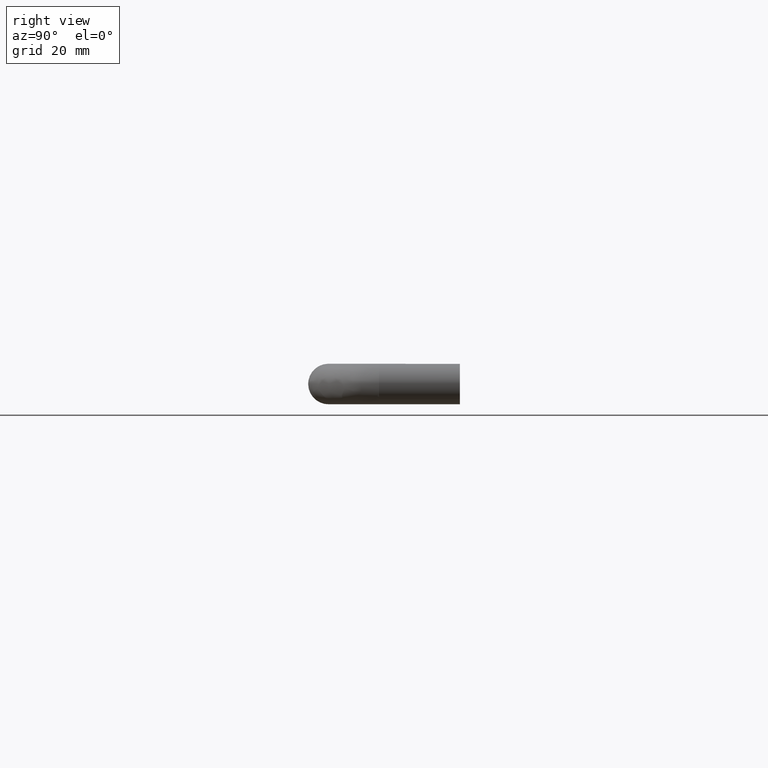
[diagram: clean part render]
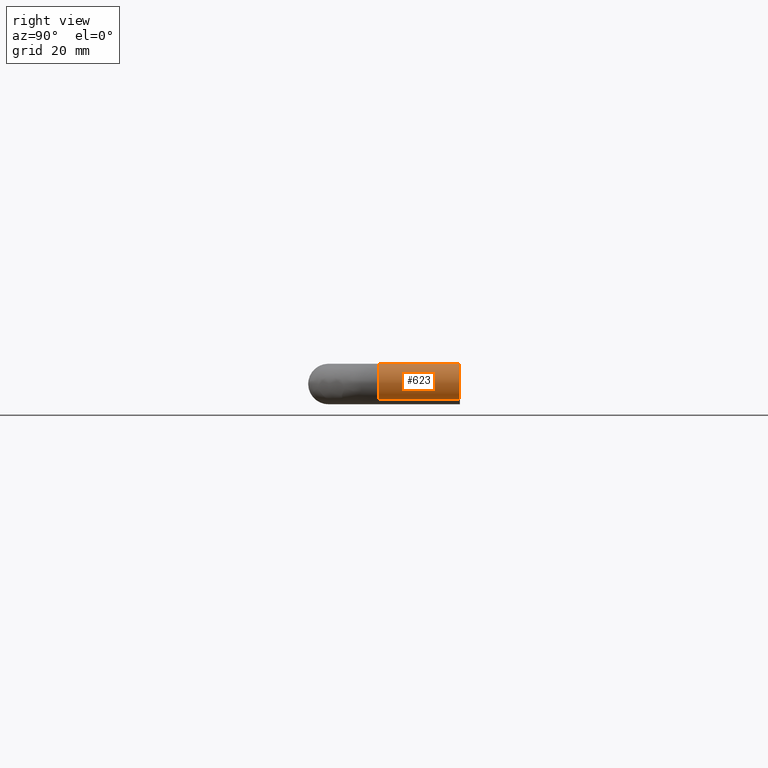
[diagram: same view with one face highlighted and labeled with its STEP entity id]
A machine part, right view. The second image highlights one B-rep face of the part: STEP entity #623.
In plain terms, the highlighted face is a freeform B-spline surface patch.
Its self-contained STEP definition (entity closure, byte-faithful):
#426=CARTESIAN_POINT('',(203.953817432960110,-24.0,-4.513017583260728));
#427=VERTEX_POINT('',#426);
#460=CARTESIAN_POINT('',(195.794544533120190,-24.0,4.279502811786761));
#461=VERTEX_POINT('',#460);
#475=CARTESIAN_POINT('',(195.794544531687510,2.418898E-014,4.279502810378846));
#476=VERTEX_POINT('',#475);
#477=CARTESIAN_POINT('',(195.794544533120190,-24.0,4.279502811786761));
#478=CARTESIAN_POINT('',(195.794544531687510,2.418898E-014,4.279502810378846));
#479=QUASI_UNIFORM_CURVE('',1,(#477,#478),.UNSPECIFIED.,.F.,.U.);
#480=EDGE_CURVE('',#461,#476,#479,.T.);
#497=CARTESIAN_POINT('',(203.953812656972390,2.378472E-014,-4.513021767455207));
#498=VERTEX_POINT('',#497);
#514=CARTESIAN_POINT('',(203.953817432960110,-24.0,-4.513017583260728));
#515=CARTESIAN_POINT('',(203.953812656972390,2.378472E-014,-4.513021767455207));
#516=QUASI_UNIFORM_CURVE('',1,(#514,#515),.UNSPECIFIED.,.F.,.U.);
#517=EDGE_CURVE('',#427,#498,#516,.T.);
#522=CARTESIAN_POINT('',(195.794544414200910,-24.600000000748739,4.279502694925088));
#523=CARTESIAN_POINT('',(200.074047109126040,-24.600000000748739,8.484958280724193));
#524=CARTESIAN_POINT('',(204.279502694925100,-24.600000000748739,4.205455585799104));
#525=CARTESIAN_POINT('',(208.484958280724130,-24.600000000748739,-0.074047109125984));
#526=CARTESIAN_POINT('',(204.205455585799090,-24.600000000748739,-4.279502694925088));
#527=CARTESIAN_POINT('',(204.082978057269060,-24.600000000748739,-4.399861027004738));
#528=CARTESIAN_POINT('',(203.953817432959620,-24.600000000748739,-4.513017583261183));
#529=CARTESIAN_POINT('',(195.794544414200910,0.615000000018747,4.279502694925088));
#530=CARTESIAN_POINT('',(200.074047109126040,0.615000000018747,8.484958280724193));
#531=CARTESIAN_POINT('',(204.279502694925100,0.615000000018746,4.205455585799104));
#532=CARTESIAN_POINT('',(208.484958280724130,0.615000000018746,-0.074047109125984));
#533=CARTESIAN_POINT('',(204.205455585799090,0.615000000018746,-4.279502694925088));
#534=CARTESIAN_POINT('',(204.082978057269060,0.615000000018746,-4.399861027004738));
#535=CARTESIAN_POINT('',(203.953817432959620,0.615000000018746,-4.513017583261183));
#543=(BOUNDED_SURFACE()B_SPLINE_SURFACE(2,1,((#522,#529),(#523,#530),(#524,#531),(#525,#532),(#526,#533),(#527,#534),(#528,#535)),.UNSPECIFIED.,.F.,.F.,.U.)B_SPLINE_SURFACE_WITH_KNOTS((3,2,2,3),(2,2),(0.0,9.941125496954337,19.882250993908670,20.279896013786850),(0.0,25.215000000767489),.UNSPECIFIED.)GEOMETRIC_REPRESENTATION_ITEM()RATIONAL_B_SPLINE_SURFACE(((1.0,1.0),(0.707106781186548,0.707106781186548),(1.0,1.0),(0.707106781186548,0.707106781186548),(1.0,1.0),(0.988284271247462,0.988284271247462),(0.977505800795127,0.977505800795127)))REPRESENTATION_ITEM('')SURFACE());
#544=CARTESIAN_POINT('',(206.0,-24.0,0.0));
#545=VERTEX_POINT('',#544);
#546=CARTESIAN_POINT('',(206.0,-24.0,0.0));
#547=CARTESIAN_POINT('',(205.999999999999970,-24.000000000000004,-2.720373935119238));
#548=CARTESIAN_POINT('',(203.953817432960140,-23.999999999999996,-4.513017583260728));
#556=(BOUNDED_CURVE()B_SPLINE_CURVE(2,(#546,#547,#548),.UNSPECIFIED.,.F.,.U.)B_SPLINE_CURVE_WITH_KNOTS((3,3),(0.0,0.134954720076236),.UNSPECIFIED.)CURVE()GEOMETRIC_REPRESENTATION_ITEM()RATIONAL_B_SPLINE_CURVE((1.0,0.841890710571211,0.854482180312941))REPRESENTATION_ITEM(''));
#557=EDGE_CURVE('',#545,#427,#556,.T.);
#558=ORIENTED_EDGE('',*,*,#557,.T.);
#559=ORIENTED_EDGE('',*,*,#517,.T.);
#560=CARTESIAN_POINT('',(206.0,2.428613E-014,0.0));
#561=VERTEX_POINT('',#560);
#562=CARTESIAN_POINT('',(206.0,2.428613E-014,0.0));
#563=CARTESIAN_POINT('',(205.999999999999970,2.428613E-014,-2.720377762562457));
#564=CARTESIAN_POINT('',(203.953812656972450,2.378472E-014,-4.513021767455208));
#572=(BOUNDED_CURVE()B_SPLINE_CURVE(2,(#562,#563,#564),.UNSPECIFIED.,.F.,.U.)B_SPLINE_CURVE_WITH_KNOTS((3,3),(0.0,0.134954879930363),.UNSPECIFIED.)CURVE()GEOMETRIC_REPRESENTATION_ITEM()RATIONAL_B_SPLINE_CURVE((1.0,0.841890523290453,0.854482210142421))REPRESENTATION_ITEM(''));
#573=EDGE_CURVE('',#561,#498,#572,.T.);
#574=ORIENTED_EDGE('',*,*,#573,.F.);
#575=CARTESIAN_POINT('',(195.794544531687540,2.418898E-014,4.279502810378846));
#576=CARTESIAN_POINT('',(197.545335383723200,2.428613E-014,6.0));
#577=CARTESIAN_POINT('',(200.0,2.428613E-014,6.0));
#578=CARTESIAN_POINT('',(206.0,2.428613E-014,6.0));
#579=CARTESIAN_POINT('',(206.0,2.428613E-014,0.0));
#587=(BOUNDED_CURVE()B_SPLINE_CURVE(2,(#575,#576,#577,#578,#579),.UNSPECIFIED.,.F.,.U.)B_SPLINE_CURVE_WITH_KNOTS((3,2,3),(0.626316765876024,0.750000000000000,1.0),.UNSPECIFIED.)CURVE()GEOMETRIC_REPRESENTATION_ITEM()RATIONAL_B_SPLINE_CURVE((0.853569641455998,0.855096077776684,1.0,0.707106781186548,1.0))REPRESENTATION_ITEM(''));
#588=EDGE_CURVE('',#476,#561,#587,.T.);
#589=ORIENTED_EDGE('',*,*,#588,.F.);
#590=ORIENTED_EDGE('',*,*,#480,.F.);
#591=CARTESIAN_POINT('',(200.418399512634010,-24.000000000730470,5.985394042820203));
#592=VERTEX_POINT('',#591);
#593=CARTESIAN_POINT('',(195.794544533120160,-24.000000000000004,4.279502811786761));
#594=CARTESIAN_POINT('',(197.545335386068050,-24.000000000000007,6.000000000000001));
#595=CARTESIAN_POINT('',(200.0,-24.0,6.0));
#596=CARTESIAN_POINT('',(200.209454698441310,-24.000000000000004,6.000000000000001));
#597=CARTESIAN_POINT('',(200.418399512634040,-24.000000000730477,5.985394042820203));
#605=(BOUNDED_CURVE()B_SPLINE_CURVE(2,(#593,#594,#595,#596,#597),.UNSPECIFIED.,.F.,.U.)B_SPLINE_CURVE_WITH_KNOTS((3,2,3),(0.626316765977056,0.750000000000000,0.762166313647692),.UNSPECIFIED.)CURVE()GEOMETRIC_REPRESENTATION_ITEM()RATIONAL_B_SPLINE_CURVE((0.853569641458491,0.855096077895049,1.0,0.985746276938534,0.972879876000374))REPRESENTATION_ITEM(''));
#606=EDGE_CURVE('',#461,#592,#605,.T.);
#607=ORIENTED_EDGE('',*,*,#606,.T.);
#608=CARTESIAN_POINT('',(200.418399512634010,-24.000000000730470,5.985394042820203));
#609=CARTESIAN_POINT('',(206.000000000000030,-24.000000000000011,5.595221077637180));
#610=CARTESIAN_POINT('',(206.0,-24.0,0.0));
#618=(BOUNDED_CURVE()B_SPLINE_CURVE(2,(#608,#609,#610),.UNSPECIFIED.,.F.,.U.)B_SPLINE_CURVE_WITH_KNOTS((3,3),(0.762166313647692,1.0),.UNSPECIFIED.)CURVE()GEOMETRIC_REPRESENTATION_ITEM()RATIONAL_B_SPLINE_CURVE((0.972879876000373,0.721360504248014,1.0))REPRESENTATION_ITEM(''));
#619=EDGE_CURVE('',#592,#545,#618,.T.);
#620=ORIENTED_EDGE('',*,*,#619,.T.);
#621=EDGE_LOOP('',(#558,#559,#574,#589,#590,#607,#620));
#622=FACE_OUTER_BOUND('',#621,.T.);
#623=ADVANCED_FACE('',(#622),#543,.T.);